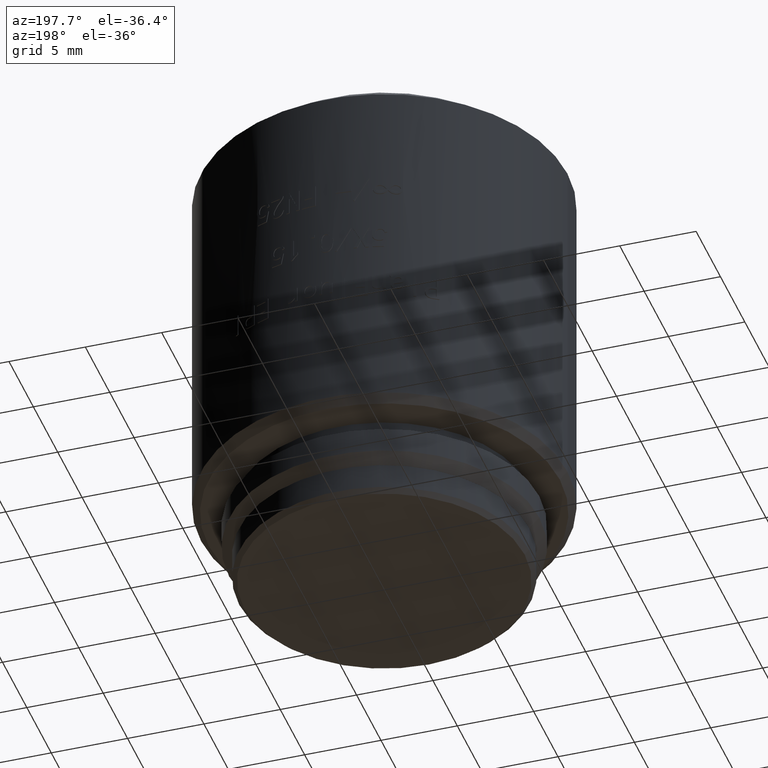
[diagram: clean part render]
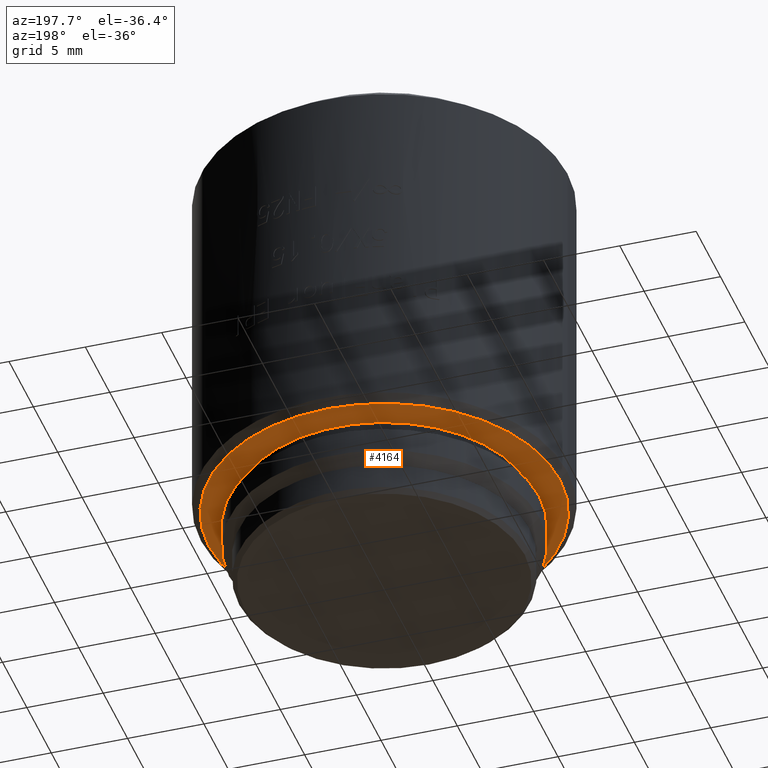
[diagram: same view with one face highlighted and labeled with its STEP entity id]
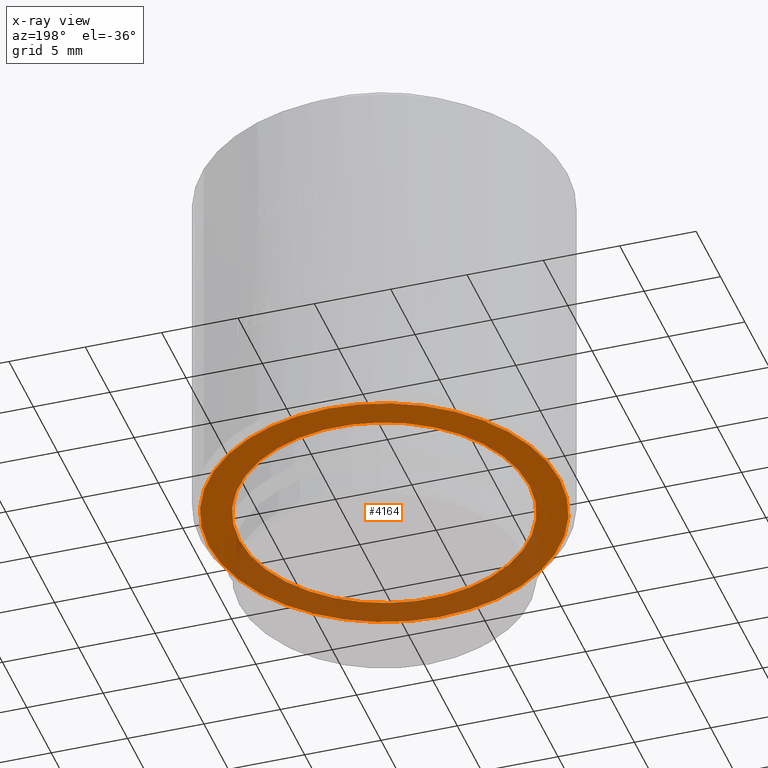
[diagram: x-ray of the same camera — body ghosted, the highlighted face saturated]
A machine part, auxiliary view. The second image highlights one B-rep face of the part: STEP entity #4164.
The next image is the same camera in x-ray: the body ghosted, the highlighted face saturated — about 38% of this face is hidden behind the body in this view.
In plain terms, the highlighted planar face has unit normal (0, 0, -1).
Its self-contained STEP definition (entity closure, byte-faithful):
#27 = DIRECTION ( 'NONE',  ( 0.000000000000000000, 0.000000000000000000, -1.000000000000000000 ) ) ;
#952 = DIRECTION ( 'NONE',  ( 0.000000000000000000, 0.000000000000000000, -1.000000000000000000 ) ) ;
#1137 = FACE_OUTER_BOUND ( 'NONE', #3501, .T. ) ;
#1448 = AXIS2_PLACEMENT_3D ( 'NONE', #7403, #4375, #7307 ) ;
#2273 = AXIS2_PLACEMENT_3D ( 'NONE', #13473, #10732, #18037 ) ;
#3501 = EDGE_LOOP ( 'NONE', ( #13927, #11650 ) ) ;
#3985 = DIRECTION ( 'NONE',  ( 0.000000000000000000, -1.000000000000000000, 0.000000000000000000 ) ) ;
#4164 = ADVANCED_FACE ( 'NONE', ( #11501, #1137 ), #16179, .T. ) ;
#4328 = EDGE_LOOP ( 'NONE', ( #18516, #7270 ) ) ;
#4375 = DIRECTION ( 'NONE',  ( 0.000000000000000000, 0.000000000000000000, -1.000000000000000000 ) ) ;
#4593 = CARTESIAN_POINT ( 'NONE',  ( 11.50000000000000000, 0.000000000000000000, 5.299999999999999822 ) ) ;
#4863 = EDGE_CURVE ( 'NONE', #6284, #9557, #13222, .T. ) ;
#5092 = CARTESIAN_POINT ( 'NONE',  ( 9.500000000000000000, 0.000000000000000000, 5.299999999999999822 ) ) ;
#6284 = VERTEX_POINT ( 'NONE', #16634 ) ;
#6627 = CARTESIAN_POINT ( 'NONE',  ( 0.000000000000000000, 0.000000000000000000, 5.299999999999999822 ) ) ;
#7270 = ORIENTED_EDGE ( 'NONE', *, *, #4863, .F. ) ;
#7307 = DIRECTION ( 'NONE',  ( -1.000000000000000000, 0.000000000000000000, 0.000000000000000000 ) ) ;
#7403 = CARTESIAN_POINT ( 'NONE',  ( 0.000000000000000000, 0.000000000000000000, 5.299999999999999822 ) ) ;
#8183 = DIRECTION ( 'NONE',  ( -1.000000000000000000, 0.000000000000000000, 0.000000000000000000 ) ) ;
#9557 = VERTEX_POINT ( 'NONE', #5092 ) ;
#9877 = CIRCLE ( 'NONE', #1448, 11.50000000000000000 ) ;
#9956 = EDGE_CURVE ( 'NONE', #9557, #6284, #16112, .T. ) ;
#10732 = DIRECTION ( 'NONE',  ( 0.000000000000000000, 0.000000000000000000, -1.000000000000000000 ) ) ;
#10737 = EDGE_CURVE ( 'NONE', #18497, #18226, #16408, .T. ) ;
#10811 = CARTESIAN_POINT ( 'NONE',  ( -11.50000000000000000, 1.438959988998139963E-15, 5.299999999999999822 ) ) ;
#11501 = FACE_BOUND ( 'NONE', #4328, .T. ) ;
#11650 = ORIENTED_EDGE ( 'NONE', *, *, #10737, .T. ) ;
#12369 = AXIS2_PLACEMENT_3D ( 'NONE', #6627, #18508, #8183 ) ;
#13222 = CIRCLE ( 'NONE', #2273, 9.500000000000000000 ) ;
#13473 = CARTESIAN_POINT ( 'NONE',  ( 0.000000000000000000, 0.000000000000000000, 5.299999999999999822 ) ) ;
#13695 = EDGE_CURVE ( 'NONE', #18226, #18497, #9877, .T. ) ;
#13927 = ORIENTED_EDGE ( 'NONE', *, *, #13695, .T. ) ;
#14870 = DIRECTION ( 'NONE',  ( -1.000000000000000000, 0.000000000000000000, 0.000000000000000000 ) ) ;
#16112 = CIRCLE ( 'NONE', #12369, 9.500000000000000000 ) ;
#16179 = PLANE ( 'NONE',  #17539 ) ;
#16408 = CIRCLE ( 'NONE', #17961, 11.50000000000000000 ) ;
#16634 = CARTESIAN_POINT ( 'NONE',  ( -9.500000000000000000, 1.163414459189985485E-15, 5.299999999999999822 ) ) ;
#16820 = CARTESIAN_POINT ( 'NONE',  ( 0.000000000000000000, 0.000000000000000000, 5.299999999999999822 ) ) ;
#17539 = AXIS2_PLACEMENT_3D ( 'NONE', #18894, #952, #3985 ) ;
#17961 = AXIS2_PLACEMENT_3D ( 'NONE', #16820, #27, #14870 ) ;
#18037 = DIRECTION ( 'NONE',  ( -1.000000000000000000, 0.000000000000000000, 0.000000000000000000 ) ) ;
#18226 = VERTEX_POINT ( 'NONE', #4593 ) ;
#18497 = VERTEX_POINT ( 'NONE', #10811 ) ;
#18508 = DIRECTION ( 'NONE',  ( 0.000000000000000000, 0.000000000000000000, -1.000000000000000000 ) ) ;
#18516 = ORIENTED_EDGE ( 'NONE', *, *, #9956, .F. ) ;
#18894 = CARTESIAN_POINT ( 'NONE',  ( 0.000000000000000000, 0.000000000000000000, 5.299999999999999822 ) ) ;